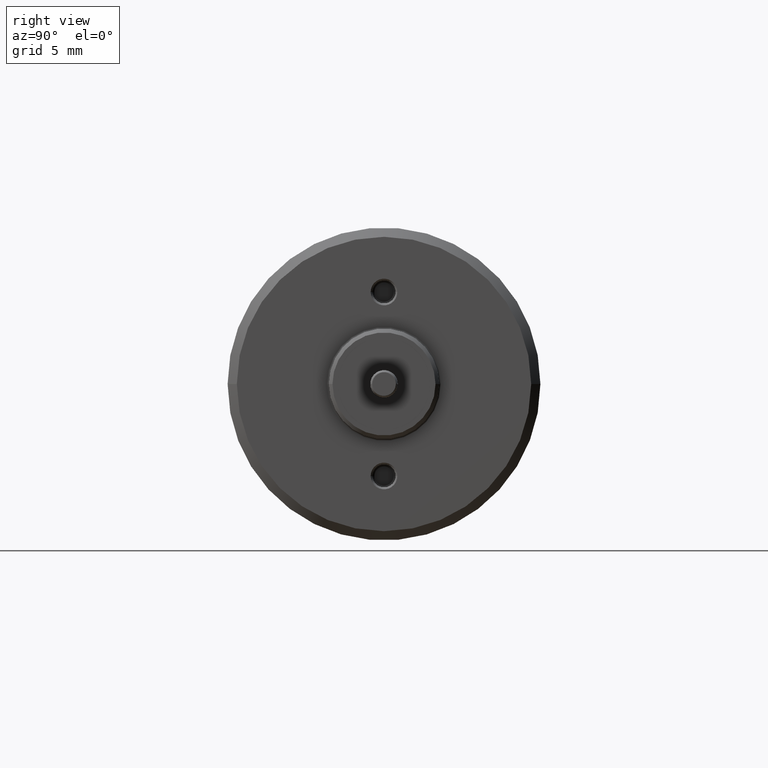
[diagram: clean part render]
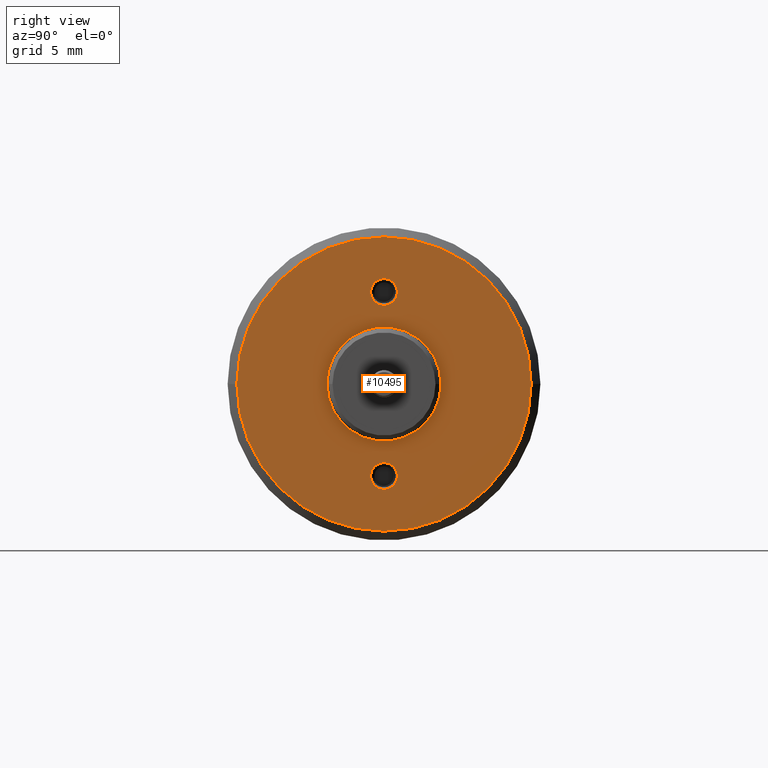
[diagram: same view with one face highlighted and labeled with its STEP entity id]
A machine part, right view. The second image highlights one B-rep face of the part: STEP entity #10495.
In plain terms, the highlighted planar face has unit normal (-1, 0, 0).
Its self-contained STEP definition (entity closure, byte-faithful):
#3544=CARTESIAN_POINT('',(2.273163629773E-6,1.341418268049E-14,0.E0));
#3545=DIRECTION('',(-1.E0,0.E0,0.E0));
#3546=DIRECTION('',(0.E0,1.E0,0.E0));
#3547=AXIS2_PLACEMENT_3D('',#3544,#3545,#3546);
#3549=CARTESIAN_POINT('',(2.273163620892E-6,-2.566566778632E-14,0.E0));
#3550=DIRECTION('',(-1.E0,0.E0,0.E0));
#3551=DIRECTION('',(0.E0,-1.E0,0.E0));
#3552=AXIS2_PLACEMENT_3D('',#3549,#3550,#3551);
#3554=CARTESIAN_POINT('',(-1.055847249432E-5,0.E0,5.E0));
#3555=DIRECTION('',(-1.E0,0.E0,0.E0));
#3556=DIRECTION('',(0.E0,-1.E0,0.E0));
#3557=AXIS2_PLACEMENT_3D('',#3554,#3555,#3556);
#3559=CARTESIAN_POINT('',(-1.055847249487E-5,0.E0,5.E0));
#3560=DIRECTION('',(-1.E0,0.E0,0.E0));
#3561=DIRECTION('',(0.E0,1.E0,0.E0));
#3562=AXIS2_PLACEMENT_3D('',#3559,#3560,#3561);
#3564=CARTESIAN_POINT('',(-1.055847249376E-5,0.E0,-5.E0));
#3565=DIRECTION('',(-1.E0,0.E0,0.E0));
#3566=DIRECTION('',(0.E0,1.E0,0.E0));
#3567=AXIS2_PLACEMENT_3D('',#3564,#3565,#3566);
#3569=CARTESIAN_POINT('',(-1.055847249476E-5,0.E0,-5.E0));
#3570=DIRECTION('',(-1.E0,0.E0,0.E0));
#3571=DIRECTION('',(0.E0,-1.E0,0.E0));
#3572=AXIS2_PLACEMENT_3D('',#3569,#3570,#3571);
#3574=CARTESIAN_POINT('',(8.364697823282E-13,0.E0,0.E0));
#3575=DIRECTION('',(1.E0,0.E0,0.E0));
#3576=DIRECTION('',(0.E0,1.E0,0.E0));
#3577=AXIS2_PLACEMENT_3D('',#3574,#3575,#3576);
#3579=CARTESIAN_POINT('',(8.364697823282E-13,0.E0,0.E0));
#3580=DIRECTION('',(1.E0,0.E0,0.E0));
#3581=DIRECTION('',(0.E0,-1.E0,0.E0));
#3582=AXIS2_PLACEMENT_3D('',#3579,#3580,#3581);
#4372=CARTESIAN_POINT('',(2.273163630753E-6,8.000001072256E0,0.E0));
#4373=CARTESIAN_POINT('',(2.273163628794E-6,-8.000001072256E0,0.E0));
#4374=VERTEX_POINT('',#4372);
#4375=VERTEX_POINT('',#4373);
#4392=CARTESIAN_POINT('',(-1.055847249440E-5,-7.250021324263E-1,5.E0));
#4393=CARTESIAN_POINT('',(-1.055847249423E-5,7.250021324263E-1,5.E0));
#4394=VERTEX_POINT('',#4392);
#4395=VERTEX_POINT('',#4393);
#4408=CARTESIAN_POINT('',(-1.055847249367E-5,7.250021324263E-1,-5.E0));
#4409=CARTESIAN_POINT('',(-1.055847249385E-5,-7.250021324263E-1,-5.E0));
#4410=VERTEX_POINT('',#4408);
#4411=VERTEX_POINT('',#4409);
#4424=CARTESIAN_POINT('',(8.368494102478E-13,3.099999590896E0,0.E0));
#4425=CARTESIAN_POINT('',(8.360901544086E-13,-3.099999590896E0,0.E0));
#4426=VERTEX_POINT('',#4424);
#4427=VERTEX_POINT('',#4425);
#10468=CARTESIAN_POINT('',(0.E0,0.E0,0.E0));
#10469=DIRECTION('',(-1.E0,0.E0,0.E0));
#10470=DIRECTION('',(0.E0,1.E0,0.E0));
#10471=AXIS2_PLACEMENT_3D('',#10468,#10469,#10470);
#10472=PLANE('',#10471);
#10473=ORIENTED_EDGE('',*,*,#10450,.T.);
#10474=ORIENTED_EDGE('',*,*,#10435,.T.);
#10475=EDGE_LOOP('',(#10473,#10474));
#10476=FACE_OUTER_BOUND('',#10475,.F.);
#10478=ORIENTED_EDGE('',*,*,#10477,.F.);
#10480=ORIENTED_EDGE('',*,*,#10479,.F.);
#10481=EDGE_LOOP('',(#10478,#10480));
#10482=FACE_BOUND('',#10481,.F.);
#10484=ORIENTED_EDGE('',*,*,#10483,.F.);
#10486=ORIENTED_EDGE('',*,*,#10485,.F.);
#10487=EDGE_LOOP('',(#10484,#10486));
#10488=FACE_BOUND('',#10487,.F.);
#10490=ORIENTED_EDGE('',*,*,#10489,.T.);
#10492=ORIENTED_EDGE('',*,*,#10491,.T.);
#10493=EDGE_LOOP('',(#10490,#10492));
#10494=FACE_BOUND('',#10493,.F.);
#10495=ADVANCED_FACE('',(#10476,#10482,#10488,#10494),#10472,.F.);
#3548=CIRCLE('',#3547,8.000001072256E0);
#3553=CIRCLE('',#3552,8.000001072256E0);
#3558=CIRCLE('',#3557,7.250021324263E-1);
#3563=CIRCLE('',#3562,7.250021324263E-1);
#3568=CIRCLE('',#3567,7.250021324263E-1);
#3573=CIRCLE('',#3572,7.250021324263E-1);
#3578=CIRCLE('',#3577,3.099999590896E0);
#3583=CIRCLE('',#3582,3.099999590896E0);
#10435=EDGE_CURVE('',#4375,#4374,#3553,.T.);
#10450=EDGE_CURVE('',#4374,#4375,#3548,.T.);
#10477=EDGE_CURVE('',#4394,#4395,#3558,.T.);
#10479=EDGE_CURVE('',#4395,#4394,#3563,.T.);
#10483=EDGE_CURVE('',#4410,#4411,#3568,.T.);
#10485=EDGE_CURVE('',#4411,#4410,#3573,.T.);
#10489=EDGE_CURVE('',#4426,#4427,#3578,.T.);
#10491=EDGE_CURVE('',#4427,#4426,#3583,.T.);